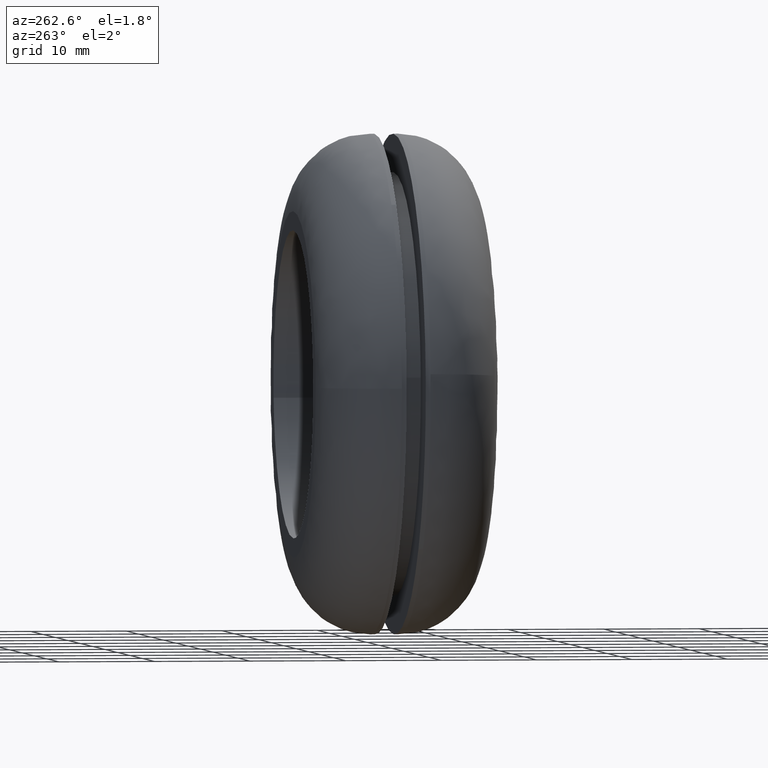
[diagram: clean part render]
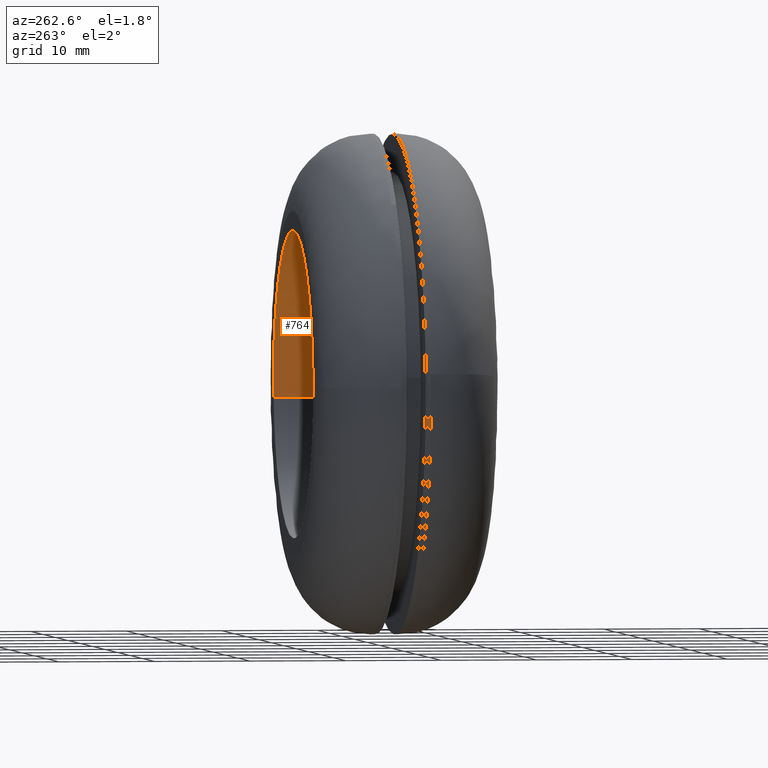
[diagram: same view with one face highlighted and labeled with its STEP entity id]
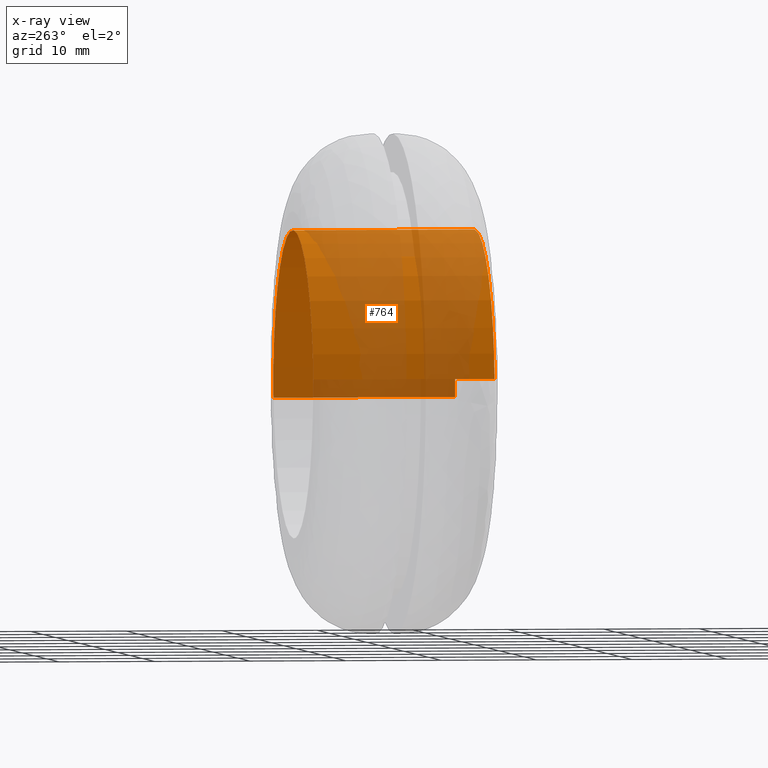
[diagram: x-ray of the same camera — body ghosted, the highlighted face saturated]
A machine part, auxiliary view. The second image highlights one B-rep face of the part: STEP entity #764.
The next image is the same camera in x-ray: the body ghosted, the highlighted face saturated — about 59% of this face is hidden behind the body in this view.
In plain terms, the highlighted face is a freeform B-spline surface patch.
Its self-contained STEP definition (entity closure, byte-faithful):
#662=CARTESIAN_POINT('',(15.888152421818658,19.475000000000009,-1.888547754508136));
#663=CARTESIAN_POINT('',(15.942201847177685,19.475000000000012,-1.433835658207643));
#664=CARTESIAN_POINT('',(15.970156774749871,19.475000000000009,-0.976776632557712));
#665=CARTESIAN_POINT('',(16.946933407307572,19.475000000000009,14.993380142192160));
#666=CARTESIAN_POINT('',(0.976776632557712,19.475000000000009,15.970156774749871));
#667=CARTESIAN_POINT('',(-14.993380142192160,19.475000000000009,16.946933407307572));
#668=CARTESIAN_POINT('',(-15.970156774749871,19.475000000000009,0.976776632557711));
#669=CARTESIAN_POINT('',(15.888152421818658,-0.486875000000001,-1.888547754508136));
#670=CARTESIAN_POINT('',(15.942201847177685,-0.486875000000001,-1.433835658207643));
#671=CARTESIAN_POINT('',(15.970156774749871,-0.486875000000001,-0.976776632557712));
#672=CARTESIAN_POINT('',(16.946933407307572,-0.486875000000001,14.993380142192160));
#673=CARTESIAN_POINT('',(0.976776632557712,-0.486875000000001,15.970156774749871));
#674=CARTESIAN_POINT('',(-14.993380142192160,-0.486875000000001,16.946933407307572));
#675=CARTESIAN_POINT('',(-15.970156774749871,-0.486875000000001,0.976776632557711));
#683=(BOUNDED_SURFACE()B_SPLINE_SURFACE(2,1,((#662,#669),(#663,#670),(#664,#671),(#665,#672),(#666,#673),(#667,#674),(#668,#675)),.UNSPECIFIED.,.F.,.F.,.U.)B_SPLINE_SURFACE_WITH_KNOTS((3,2,2,3),(2,2),(0.0,1.060386719675124,27.570054711553190,54.079722703431273),(0.0,19.961875000000010),.UNSPECIFIED.)GEOMETRIC_REPRESENTATION_ITEM()RATIONAL_B_SPLINE_SURFACE(((0.977505800795127,0.977505800795127),(0.988284271247462,0.988284271247462),(1.0,1.0),(0.707106781186548,0.707106781186548),(1.0,1.0),(0.707106781186548,0.707106781186548),(1.0,1.0)))REPRESENTATION_ITEM('')SURFACE());
#684=CARTESIAN_POINT('',(15.888154890393080,18.999999999999961,-1.888526986421135));
#685=VERTEX_POINT('',#684);
#686=CARTESIAN_POINT('',(0.0,19.0,16.0));
#687=VERTEX_POINT('',#686);
#688=CARTESIAN_POINT('',(15.888154890393078,18.999999999999961,-1.888526986421135));
#689=CARTESIAN_POINT('',(16.000000000000007,19.0,-0.947575420610316));
#690=CARTESIAN_POINT('',(16.0,19.0,-3.673819E-016));
#691=CARTESIAN_POINT('',(15.999999999999998,18.999999999999993,15.999999999999998));
#692=CARTESIAN_POINT('',(0.0,19.0,16.0));
#700=(BOUNDED_CURVE()B_SPLINE_CURVE(2,(#688,#689,#690,#691,#692),.UNSPECIFIED.,.F.,.U.)B_SPLINE_CURVE_WITH_KNOTS((3,2,3),(0.229562694427073,0.250000000000000,0.500000000000000),.UNSPECIFIED.)CURVE()GEOMETRIC_REPRESENTATION_ITEM()RATIONAL_B_SPLINE_CURVE((0.956027187183784,0.976056207147485,1.0,0.707106781186548,1.0))REPRESENTATION_ITEM(''));
#701=EDGE_CURVE('',#685,#687,#700,.T.);
#702=ORIENTED_EDGE('',*,*,#701,.F.);
#703=CARTESIAN_POINT('',(15.888154860658560,-3.996619E-015,-1.888527236580032));
#704=VERTEX_POINT('',#703);
#705=CARTESIAN_POINT('',(15.888154890393080,18.999999999999961,-1.888526986421135));
#706=CARTESIAN_POINT('',(15.888154860658560,-3.996619E-015,-1.888527236580032));
#707=QUASI_UNIFORM_CURVE('',1,(#705,#706),.UNSPECIFIED.,.F.,.U.);
#708=EDGE_CURVE('',#685,#704,#707,.T.);
#709=ORIENTED_EDGE('',*,*,#708,.T.);
#710=CARTESIAN_POINT('',(0.0,-2.939055E-015,16.0));
#711=VERTEX_POINT('',#710);
#712=CARTESIAN_POINT('',(15.888154860658563,-3.996619E-015,-1.888527236580032));
#713=CARTESIAN_POINT('',(15.999999999999996,-2.939055E-015,-0.947575547012040));
#714=CARTESIAN_POINT('',(16.0,-2.939055E-015,-3.673819E-016));
#715=CARTESIAN_POINT('',(15.999999999999998,-2.939055E-015,15.999999999999998));
#716=CARTESIAN_POINT('',(0.0,-2.939055E-015,16.0));
#724=(BOUNDED_CURVE()B_SPLINE_CURVE(2,(#712,#713,#714,#715,#716),.UNSPECIFIED.,.F.,.U.)B_SPLINE_CURVE_WITH_KNOTS((3,2,3),(0.229562691766117,0.250000000000000,0.500000000000000),.UNSPECIFIED.)CURVE()GEOMETRIC_REPRESENTATION_ITEM()RATIONAL_B_SPLINE_CURVE((0.956027181968191,0.976056204029982,1.0,0.707106781186548,1.0))REPRESENTATION_ITEM(''));
#725=EDGE_CURVE('',#704,#711,#724,.T.);
#726=ORIENTED_EDGE('',*,*,#725,.T.);
#727=CARTESIAN_POINT('',(-15.970157002924900,-4.078552E-015,0.976772901914701));
#728=VERTEX_POINT('',#727);
#729=CARTESIAN_POINT('',(0.0,-2.939055E-015,16.0));
#730=CARTESIAN_POINT('',(-15.051300593058317,-2.939055E-015,16.000000000000004));
#731=CARTESIAN_POINT('',(-15.970157002924894,-4.078552E-015,0.976772901914701));
#739=(BOUNDED_CURVE()B_SPLINE_CURVE(2,(#729,#730,#731),.UNSPECIFIED.,.F.,.U.)B_SPLINE_CURVE_WITH_KNOTS((3,3),(0.500000000000000,0.739333002549055),.UNSPECIFIED.)CURVE()GEOMETRIC_REPRESENTATION_ITEM()RATIONAL_B_SPLINE_CURVE((1.0,0.719603946060476,0.976072128058977))REPRESENTATION_ITEM(''));
#740=EDGE_CURVE('',#711,#728,#739,.T.);
#741=ORIENTED_EDGE('',*,*,#740,.T.);
#742=CARTESIAN_POINT('',(-15.970157005703809,18.999999999999989,0.976772856479495));
#743=VERTEX_POINT('',#742);
#744=CARTESIAN_POINT('',(-15.970157005703809,18.999999999999989,0.976772856479495));
#745=CARTESIAN_POINT('',(-15.970157002924900,-4.078552E-015,0.976772901914701));
#746=QUASI_UNIFORM_CURVE('',1,(#744,#745),.UNSPECIFIED.,.F.,.U.);
#747=EDGE_CURVE('',#743,#728,#746,.T.);
#748=ORIENTED_EDGE('',*,*,#747,.F.);
#749=CARTESIAN_POINT('',(0.0,19.0,16.0));
#750=CARTESIAN_POINT('',(-15.051300635959381,19.0,16.000000000000004));
#751=CARTESIAN_POINT('',(-15.970157005703813,18.999999999999996,0.976772856479495));
#759=(BOUNDED_CURVE()B_SPLINE_CURVE(2,(#749,#750,#751),.UNSPECIFIED.,.F.,.U.)B_SPLINE_CURVE_WITH_KNOTS((3,3),(0.500000000000000,0.739333003039952),.UNSPECIFIED.)CURVE()GEOMETRIC_REPRESENTATION_ITEM()RATIONAL_B_SPLINE_CURVE((1.0,0.719603945485355,0.976072129111062))REPRESENTATION_ITEM(''));
#760=EDGE_CURVE('',#687,#743,#759,.T.);
#761=ORIENTED_EDGE('',*,*,#760,.F.);
#762=EDGE_LOOP('',(#702,#709,#726,#741,#748,#761));
#763=FACE_OUTER_BOUND('',#762,.T.);
#764=ADVANCED_FACE('',(#763),#683,.F.);